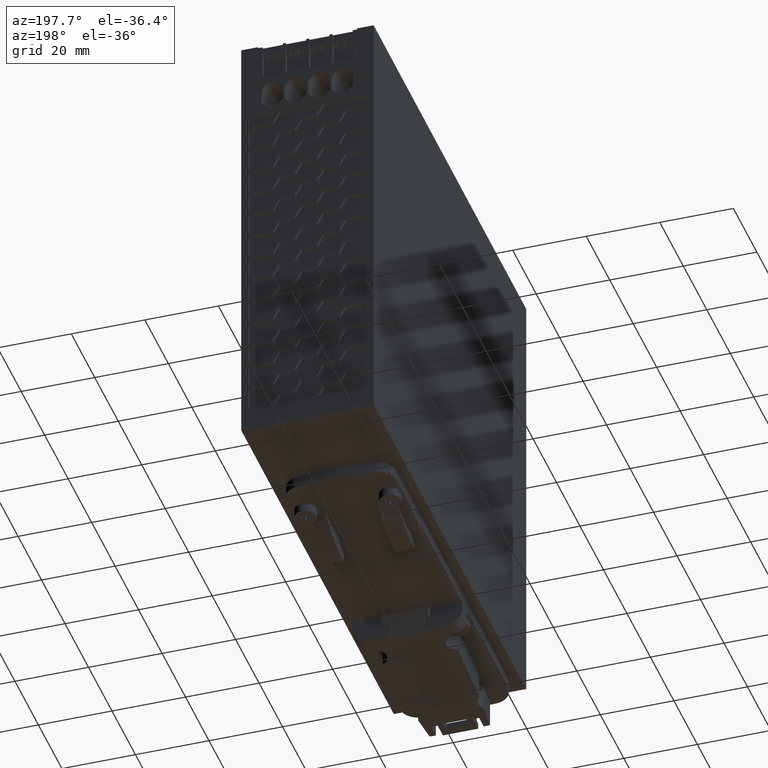
[diagram: clean part render]
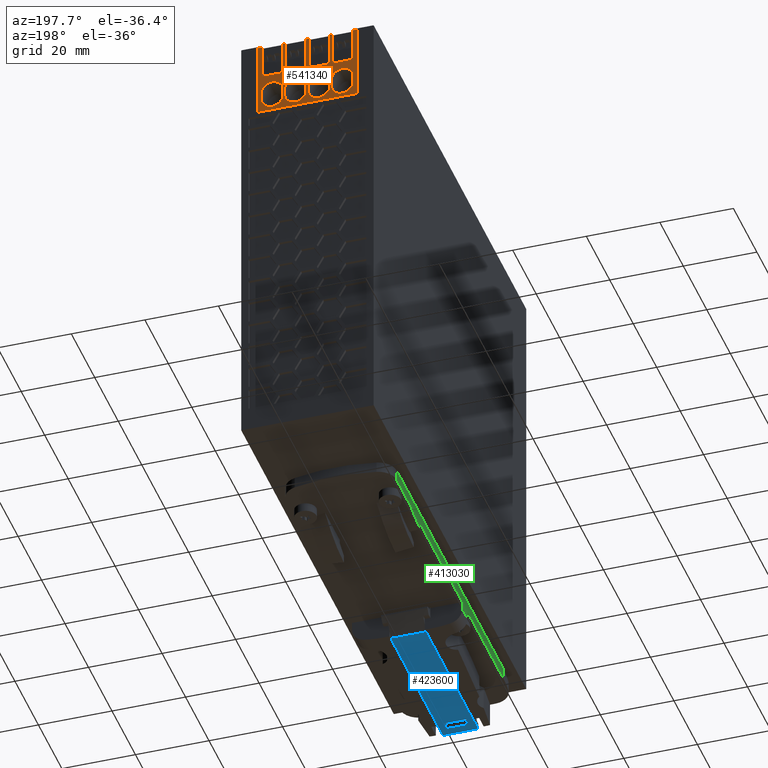
[diagram: same view with three faces highlighted in distinct colors, each labeled with its STEP entity id]
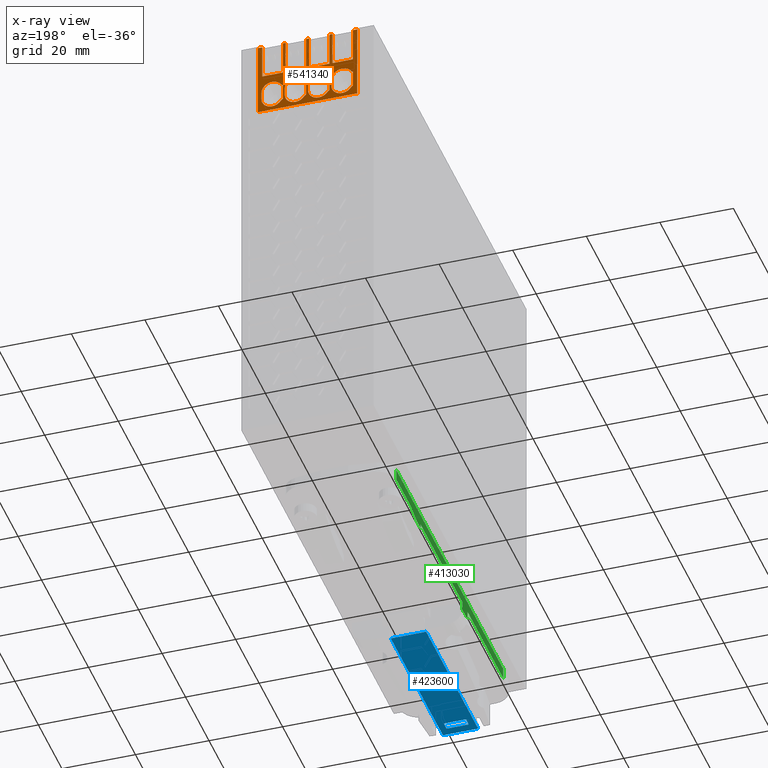
[diagram: x-ray of the same camera — body ghosted, the three highlighted faces saturated]
A machine part, auxiliary view with three faces highlighted in distinct colors.
The next image is the same camera in x-ray (body ghosted, the three faces saturated) — at least one of them is partly hidden behind the body in this view.
Their STEP definitions:

[orange] entity #541340 — the highlighted planar face has unit normal (0, 1, 0).
#400070=CARTESIAN_POINT('',(31.5,129.900000002161,131.60000000419));
#400080=VERTEX_POINT('',#400070);
#400110=CARTESIAN_POINT('',(31.5,129.900000002161,131.2));
#400120=DIRECTION('',(0.,-6.12775601141841E-250,1.));
#400130=VECTOR('',#400120,1.);
#400140=LINE('',#400110,#400130);
#400150=CARTESIAN_POINT('',(31.5,129.900000002161,110.999999999047));
#400160=VERTEX_POINT('',#400150);
#400170=EDGE_CURVE('',#400160,#400080,#400140,.T.);
#400670=CARTESIAN_POINT('',(4.5,129.900000002161,110.999999999047));
#400680=VERTEX_POINT('',#400670);
#400730=CARTESIAN_POINT('',(4.5,129.900000002161,131.2));
#400740=DIRECTION('',(-0.,6.12775601141841E-250,-1.));
#400750=VECTOR('',#400740,1.);
#400760=LINE('',#400730,#400750);
#400770=CARTESIAN_POINT('',(4.5,129.900000002161,131.60000000419));
#400780=VERTEX_POINT('',#400770);
#400790=EDGE_CURVE('',#400780,#400680,#400760,.T.);
#526770=CARTESIAN_POINT('',(38.9583760060492,129.900000002161,
122.249999999047));
#526780=DIRECTION('',(-1.,1.66533453693773E-16,7.31667572330088E-115));
#526790=VECTOR('',#526780,1.);
#526800=LINE('',#526770,#526790);
#526810=CARTESIAN_POINT('',(17.5986736042292,129.900000002161,
122.249999999047));
#526820=VERTEX_POINT('',#526810);
#526830=CARTESIAN_POINT('',(12.0486736042292,129.900000002161,
122.249999999047));
#526840=VERTEX_POINT('',#526830);
#526850=EDGE_CURVE('',#526820,#526840,#526800,.T.);
#536960=CARTESIAN_POINT('',(17.5986736042292,129.900000002161,
158.711171773307));
#536970=DIRECTION('',(-3.6795946252855E-234,0.,1.));
#536980=VECTOR('',#536970,1.);
#536990=LINE('',#536960,#536980);
#537000=CARTESIAN_POINT('',(17.5986736042292,129.900000002161,
131.60000000419));
#537010=VERTEX_POINT('',#537000);
#537020=EDGE_CURVE('',#526820,#537010,#536990,.T.);
#537690=CARTESIAN_POINT('',(12.0486736042292,129.900000002161,
131.60000000419));
#537700=VERTEX_POINT('',#537690);
#537730=CARTESIAN_POINT('',(12.0486736042292,129.900000002161,
158.711171773307));
#537740=DIRECTION('',(-3.6795946252855E-234,0.,1.));
#537750=VECTOR('',#537740,1.);
#537760=LINE('',#537730,#537750);
#537770=EDGE_CURVE('',#526840,#537700,#537760,.T.);
#537920=CARTESIAN_POINT('',(31.4361786442295,129.900000002161,
132.115005044318));
#537930=DIRECTION('',(1.66533453693773E-16,1.,6.12775601141841E-250));
#537940=DIRECTION('',(3.6795946252855E-234,-0.,-1.));
#537950=AXIS2_PLACEMENT_3D('',#537920,#537930,#537940);
#537960=PLANE('',#537950);
#537970=CARTESIAN_POINT('',(21.2986736048012,129.900000002161,
114.950804001168));
#537980=DIRECTION('',(1.66533453693773E-16,1.,-1.21847127775868E-130));
#537990=DIRECTION('',(3.6795946252855E-234,-0.,-1.));
#538000=AXIS2_PLACEMENT_3D('',#537970,#537980,#537990);
#538010=CIRCLE('',#538000,2.90000000000001);
#538020=CARTESIAN_POINT('',(24.1986736047943,129.900000002161,
114.950804000374));
#538030=VERTEX_POINT('',#538020);
#538040=CARTESIAN_POINT('',(18.881984673712,129.900000002161,
113.347802250793));
#538050=VERTEX_POINT('',#538040);
#538060=EDGE_CURVE('',#538030,#538050,#538010,.T.);
#538070=ORIENTED_EDGE('',*,*,#538060,.F.);
#538080=CARTESIAN_POINT('',(17.9653095619938,129.900000002161,
112.739767104146));
#538090=DIRECTION('',(1.66533453693773E-16,1.,-1.21847127775868E-130));
#538100=DIRECTION('',(3.6795946252855E-234,-0.,-1.));
#538110=AXIS2_PLACEMENT_3D('',#538080,#538090,#538100);
#538120=CIRCLE('',#538110,1.10000000000069);
#538130=CARTESIAN_POINT('',(18.3986736049339,129.900000002161,
113.750804000747));
#538140=VERTEX_POINT('',#538130);
#538150=EDGE_CURVE('',#538140,#538050,#538120,.T.);
#538160=ORIENTED_EDGE('',*,*,#538150,.T.);
#538170=CARTESIAN_POINT('',(18.3986736049339,129.900000002161,
158.711171773307));
#538180=DIRECTION('',(3.6795946252855E-234,-0.,-1.));
#538190=VECTOR('',#538180,1.);
#538200=LINE('',#538170,#538190);
#538210=CARTESIAN_POINT('',(18.3986736049339,129.900000002161,
118.200804001161));
#538220=VERTEX_POINT('',#538210);
#538230=EDGE_CURVE('',#538220,#538140,#538200,.T.);
#538240=ORIENTED_EDGE('',*,*,#538230,.T.);
#538250=CARTESIAN_POINT('',(17.9653095619839,129.900000002161,
119.211840897757));
#538260=DIRECTION('',(1.66533453693773E-16,1.,-1.21847127775868E-130));
#538270=DIRECTION('',(3.6795946252855E-234,-0.,-1.));
#538280=AXIS2_PLACEMENT_3D('',#538250,#538260,#538270);
#538290=CIRCLE('',#538280,1.10000000000048);
#538300=CARTESIAN_POINT('',(18.8819846738836,129.900000002161,
118.603805751115));
#538310=VERTEX_POINT('',#538300);
#538320=EDGE_CURVE('',#538310,#538220,#538290,.T.);
#538330=ORIENTED_EDGE('',*,*,#538320,.T.);
#538340=CARTESIAN_POINT('',(21.2986736048242,129.900000002161,
117.000804001167));
#538350=DIRECTION('',(1.66533453693773E-16,1.,-1.21847127775868E-130));
#538360=DIRECTION('',(3.6795946252855E-234,-0.,-1.));
#538370=AXIS2_PLACEMENT_3D('',#538340,#538350,#538360);
#538380=CIRCLE('',#538370,2.89999999987401);
#538390=CARTESIAN_POINT('',(24.1986736046982,129.900000002161,
117.000804001166));
#538400=VERTEX_POINT('',#538390);
#538410=EDGE_CURVE('',#538310,#538400,#538380,.T.);
#538420=ORIENTED_EDGE('',*,*,#538410,.F.);
#538430=CARTESIAN_POINT('',(24.1986736047943,129.900000002161,
158.711171773307));
#538440=DIRECTION('',(3.6795946252855E-234,-0.,-1.));
#538450=VECTOR('',#538440,1.);
#538460=LINE('',#538430,#538450);
#538470=EDGE_CURVE('',#538400,#538030,#538460,.T.);
#538480=ORIENTED_EDGE('',*,*,#538470,.F.);
#538490=EDGE_LOOP('',(#538480,#538420,#538330,#538240,#538160,#538070));
#538500=FACE_BOUND('',#538490,.T.);
#538510=CARTESIAN_POINT('',(24.3153095619844,129.900000002161,
119.211840897757));
#538520=DIRECTION('',(1.66533453693773E-16,1.,-1.21847127775868E-130));
#538530=DIRECTION('',(3.6795946252855E-234,-0.,-1.));
#538540=AXIS2_PLACEMENT_3D('',#538510,#538520,#538530);
#538550=CIRCLE('',#538540,1.09999999999979);
#538560=CARTESIAN_POINT('',(25.2319846737598,129.900000002161,
118.603805751197));
#538570=VERTEX_POINT('',#538560);
#538580=CARTESIAN_POINT('',(24.7486736049339,129.900000002161,
118.200804001161));
#538590=VERTEX_POINT('',#538580);
#538600=EDGE_CURVE('',#538570,#538590,#538550,.T.);
#538610=ORIENTED_EDGE('',*,*,#538600,.T.);
#538620=CARTESIAN_POINT('',(27.6486736048242,129.900000002161,
117.000804001167));
#538630=DIRECTION('',(1.66533453693773E-16,1.,-1.21847127775868E-130));
#538640=DIRECTION('',(3.6795946252855E-234,-0.,-1.));
#538650=AXIS2_PLACEMENT_3D('',#538620,#538630,#538640);
#538660=CIRCLE('',#538650,2.89999999987399);
#538670=CARTESIAN_POINT('',(30.5486736046981,129.900000002161,
117.000804001112));
#538680=VERTEX_POINT('',#538670);
#538690=EDGE_CURVE('',#538570,#538680,#538660,.T.);
#538700=ORIENTED_EDGE('',*,*,#538690,.F.);
#538710=CARTESIAN_POINT('',(30.5486736047943,129.900000002161,
158.711171773307));
#538720=DIRECTION('',(3.6795946252855E-234,-0.,-1.));
#538730=VECTOR('',#538720,1.);
#538740=LINE('',#538710,#538730);
#538750=CARTESIAN_POINT('',(30.5486736048012,129.900000002161,
114.950804000374));
#538760=VERTEX_POINT('',#538750);
#538770=EDGE_CURVE('',#538680,#538760,#538740,.T.);
#538780=ORIENTED_EDGE('',*,*,#538770,.F.);
#538790=CARTESIAN_POINT('',(27.6486736048012,129.900000002161,
114.950804001168));
#538800=DIRECTION('',(1.66533453693773E-16,1.,-1.21847127775868E-130));
#538810=DIRECTION('',(3.6795946252855E-234,-0.,-1.));
#538820=AXIS2_PLACEMENT_3D('',#538790,#538800,#538810);
#538830=CIRCLE('',#538820,2.90000000000006);
#538840=CARTESIAN_POINT('',(25.231984673713,129.900000002161,
113.347802250791));
#538850=VERTEX_POINT('',#538840);
#538860=EDGE_CURVE('',#538760,#538850,#538830,.T.);
#538870=ORIENTED_EDGE('',*,*,#538860,.F.);
#538880=CARTESIAN_POINT('',(24.3153095619948,129.900000002161,
112.739767104147));
#538890=DIRECTION('',(1.66533453693773E-16,1.,-1.21847127775868E-130));
#538900=DIRECTION('',(3.6795946252855E-234,-0.,-1.));
#538910=AXIS2_PLACEMENT_3D('',#538880,#538890,#538900);
#538920=CIRCLE('',#538910,1.09999999999916);
#538930=CARTESIAN_POINT('',(24.748673604934,129.900000002161,
113.750804000747));
#538940=VERTEX_POINT('',#538930);
#538950=EDGE_CURVE('',#538940,#538850,#538920,.T.);
#538960=ORIENTED_EDGE('',*,*,#538950,.T.);
#538970=CARTESIAN_POINT('',(24.7486736049339,129.900000002161,
158.711171773307));
#538980=DIRECTION('',(3.6795946252855E-234,-0.,-1.));
#538990=VECTOR('',#538980,1.);
#539000=LINE('',#538970,#538990);
#539010=EDGE_CURVE('',#538590,#538940,#539000,.T.);
#539020=ORIENTED_EDGE('',*,*,#539010,.T.);
#539030=EDGE_LOOP('',(#539020,#538960,#538870,#538780,#538700,#538610));
#539040=FACE_BOUND('',#539030,.T.);
#539050=CARTESIAN_POINT('',(8.59867360479617,129.900000002161,
114.950804001168));
#539060=DIRECTION('',(1.66533453693773E-16,1.,-1.21847127775868E-130));
#539070=DIRECTION('',(3.6795946252855E-234,-0.,-1.));
#539080=AXIS2_PLACEMENT_3D('',#539050,#539060,#539070);
#539090=CIRCLE('',#539080,2.90000000000001);
#539100=CARTESIAN_POINT('',(11.4986736047893,129.900000002161,
114.950804000969));
#539110=VERTEX_POINT('',#539100);
#539120=CARTESIAN_POINT('',(6.18198467370703,129.900000002161,
113.347802250793));
#539130=VERTEX_POINT('',#539120);
#539140=EDGE_CURVE('',#539110,#539130,#539090,.T.);
#539150=ORIENTED_EDGE('',*,*,#539140,.F.);
#539160=CARTESIAN_POINT('',(5.26530956198879,129.900000002161,
112.739767104146));
#539170=DIRECTION('',(1.66533453693773E-16,1.,-1.21847127775868E-130));
#539180=DIRECTION('',(3.6795946252855E-234,-0.,-1.));
#539190=AXIS2_PLACEMENT_3D('',#539160,#539170,#539180);
#539200=CIRCLE('',#539190,1.10000000000069);
#539210=CARTESIAN_POINT('',(5.69867360492893,129.900000002161,
113.750804000747));
#539220=VERTEX_POINT('',#539210);
#539230=EDGE_CURVE('',#539220,#539130,#539200,.T.);
#539240=ORIENTED_EDGE('',*,*,#539230,.T.);
#539250=CARTESIAN_POINT('',(5.69867360492893,129.900000002161,
158.711171773307));
#539260=DIRECTION('',(3.6795946252855E-234,-0.,-1.));
#539270=VECTOR('',#539260,1.);
#539280=LINE('',#539250,#539270);
#539290=CARTESIAN_POINT('',(5.69867360492893,129.900000002161,
118.200804001161));
#539300=VERTEX_POINT('',#539290);
#539310=EDGE_CURVE('',#539300,#539220,#539280,.T.);
#539320=ORIENTED_EDGE('',*,*,#539310,.T.);
#539330=CARTESIAN_POINT('',(5.2653095619789,129.900000002161,
119.211840897757));
#539340=DIRECTION('',(1.66533453693773E-16,1.,-1.21847127775868E-130));
#539350=DIRECTION('',(3.6795946252855E-234,-0.,-1.));
#539360=AXIS2_PLACEMENT_3D('',#539330,#539340,#539350);
#539370=CIRCLE('',#539360,1.10000000000048);
#539380=CARTESIAN_POINT('',(6.18198467387856,129.900000002161,
118.603805751115));
#539390=VERTEX_POINT('',#539380);
#539400=EDGE_CURVE('',#539390,#539300,#539370,.T.);
#539410=ORIENTED_EDGE('',*,*,#539400,.T.);
#539420=CARTESIAN_POINT('',(8.59867360481917,129.900000002161,
117.000804001167));
#539430=DIRECTION('',(1.66533453693773E-16,1.,-1.21847127775868E-130));
#539440=DIRECTION('',(3.6795946252855E-234,-0.,-1.));
#539450=AXIS2_PLACEMENT_3D('',#539420,#539430,#539440);
#539460=CIRCLE('',#539450,2.89999999987401);
#539470=CARTESIAN_POINT('',(11.4986736047893,129.900000002161,
117.000804001112));
#539480=VERTEX_POINT('',#539470);
#539490=EDGE_CURVE('',#539390,#539480,#539460,.T.);
#539500=ORIENTED_EDGE('',*,*,#539490,.F.);
#539510=CARTESIAN_POINT('',(11.4986736047893,129.900000002161,
158.711171773307));
#539520=DIRECTION('',(3.6795946252855E-234,-0.,-1.));
#539530=VECTOR('',#539520,1.);
#539540=LINE('',#539510,#539530);
#539550=EDGE_CURVE('',#539480,#539110,#539540,.T.);
#539560=ORIENTED_EDGE('',*,*,#539550,.F.);
#539570=EDGE_LOOP('',(#539560,#539500,#539410,#539320,#539240,#539150));
#539580=FACE_BOUND('',#539570,.T.);
#539590=CARTESIAN_POINT('',(11.6153095619794,129.900000002161,
119.211840897757));
#539600=DIRECTION('',(1.66533453693773E-16,1.,-1.21847127775868E-130));
#539610=DIRECTION('',(3.6795946252855E-234,-0.,-1.));
#539620=AXIS2_PLACEMENT_3D('',#539590,#539600,#539610);
#539630=CIRCLE('',#539620,1.09999999999979);
#539640=CARTESIAN_POINT('',(12.5319846738786,129.900000002161,
118.603805751115));
#539650=VERTEX_POINT('',#539640);
#539660=CARTESIAN_POINT('',(12.0486736049289,129.900000002161,
118.200804001161));
#539670=VERTEX_POINT('',#539660);
#539680=EDGE_CURVE('',#539650,#539670,#539630,.T.);
#539690=ORIENTED_EDGE('',*,*,#539680,.T.);
#539700=CARTESIAN_POINT('',(14.9486736048192,129.900000002161,
117.000804001167));
#539710=DIRECTION('',(1.66533453693773E-16,1.,-1.21847127775868E-130));
#539720=DIRECTION('',(3.6795946252855E-234,-0.,-1.));
#539730=AXIS2_PLACEMENT_3D('',#539700,#539710,#539720);
#539740=CIRCLE('',#539730,2.89999999987399);
#539750=CARTESIAN_POINT('',(17.8486736046932,129.900000002161,
117.000804001112));
#539760=VERTEX_POINT('',#539750);
#539770=EDGE_CURVE('',#539650,#539760,#539740,.T.);
#539780=ORIENTED_EDGE('',*,*,#539770,.F.);
#539790=CARTESIAN_POINT('',(17.8486736047893,129.900000002161,
158.711171773307));
#539800=DIRECTION('',(3.6795946252855E-234,-0.,-1.));
#539810=VECTOR('',#539800,1.);
#539820=LINE('',#539790,#539810);
#539830=CARTESIAN_POINT('',(17.8486736047962,129.900000002161,
114.950804000374));
#539840=VERTEX_POINT('',#539830);
#539850=EDGE_CURVE('',#539760,#539840,#539820,.T.);
#539860=ORIENTED_EDGE('',*,*,#539850,.F.);
#539870=CARTESIAN_POINT('',(14.9486736047962,129.900000002161,
114.950804001168));
#539880=DIRECTION('',(1.66533453693773E-16,1.,-1.21847127775868E-130));
#539890=DIRECTION('',(3.6795946252855E-234,-0.,-1.));
#539900=AXIS2_PLACEMENT_3D('',#539870,#539880,#539890);
#539910=CIRCLE('',#539900,2.90000000000006);
#539920=CARTESIAN_POINT('',(12.531984673707,129.900000002161,
113.347802250793));
#539930=VERTEX_POINT('',#539920);
#539940=EDGE_CURVE('',#539840,#539930,#539910,.T.);
#539950=ORIENTED_EDGE('',*,*,#539940,.F.);
#539960=CARTESIAN_POINT('',(11.6153095619898,129.900000002161,
112.739767104147));
#539970=DIRECTION('',(1.66533453693773E-16,1.,-1.21847127775868E-130));
#539980=DIRECTION('',(3.6795946252855E-234,-0.,-1.));
#539990=AXIS2_PLACEMENT_3D('',#539960,#539970,#539980);
#540000=CIRCLE('',#539990,1.09999999999916);
#540010=CARTESIAN_POINT('',(12.0486736049289,129.900000002161,
113.750804000747));
#540020=VERTEX_POINT('',#540010);
#540030=EDGE_CURVE('',#540020,#539930,#540000,.T.);
#540040=ORIENTED_EDGE('',*,*,#540030,.T.);
#540050=CARTESIAN_POINT('',(12.0486736049289,129.900000002161,
158.711171773307));
#540060=DIRECTION('',(3.6795946252855E-234,-0.,-1.));
#540070=VECTOR('',#540060,1.);
#540080=LINE('',#540050,#540070);
#540090=EDGE_CURVE('',#539670,#540020,#540080,.T.);
#540100=ORIENTED_EDGE('',*,*,#540090,.T.);
#540110=EDGE_LOOP('',(#540100,#540040,#539950,#539860,#539780,#539690));
#540120=FACE_BOUND('',#540110,.T.);
#540130=ORIENTED_EDGE('',*,*,#400170,.F.);
#540140=CARTESIAN_POINT('',(0.,129.900000002161,131.60000000419));
#540150=DIRECTION('',(1.,-1.66533453693773E-16,0.));
#540160=VECTOR('',#540150,1.);
#540170=LINE('',#540140,#540160);
#540180=CARTESIAN_POINT('',(30.2986736042342,129.900000002161,
131.60000000419));
#540190=VERTEX_POINT('',#540180);
#540200=EDGE_CURVE('',#540190,#400080,#540170,.T.);
#540210=ORIENTED_EDGE('',*,*,#540200,.T.);
#540220=CARTESIAN_POINT('',(30.2986736042342,129.900000002161,
158.711171773307));
#540230=DIRECTION('',(-3.6795946252855E-234,0.,1.));
#540240=VECTOR('',#540230,1.);
#540250=LINE('',#540220,#540240);
#540260=CARTESIAN_POINT('',(30.2986736042342,129.900000002161,
122.249999999047));
#540270=VERTEX_POINT('',#540260);
#540280=EDGE_CURVE('',#540270,#540190,#540250,.T.);
#540290=ORIENTED_EDGE('',*,*,#540280,.T.);
#540300=CARTESIAN_POINT('',(51.6583760060542,129.900000002161,
122.249999999047));
#540310=DIRECTION('',(-1.,1.66533453693773E-16,7.31667572330088E-115));
#540320=VECTOR('',#540310,1.);
#540330=LINE('',#540300,#540320);
#540340=CARTESIAN_POINT('',(24.7486736042342,129.900000002161,
122.249999999047));
#540350=VERTEX_POINT('',#540340);
#540360=EDGE_CURVE('',#540270,#540350,#540330,.T.);
#540370=ORIENTED_EDGE('',*,*,#540360,.F.);
#540380=CARTESIAN_POINT('',(24.7486736042342,129.900000002161,
158.711171773307));
#540390=DIRECTION('',(-3.6795946252855E-234,0.,1.));
#540400=VECTOR('',#540390,1.);
#540410=LINE('',#540380,#540400);
#540420=CARTESIAN_POINT('',(24.7486736042342,129.900000002161,
131.60000000419));
#540430=VERTEX_POINT('',#540420);
#540440=EDGE_CURVE('',#540350,#540430,#540410,.T.);
#540450=ORIENTED_EDGE('',*,*,#540440,.F.);
#540460=CARTESIAN_POINT('',(51.6583760060542,129.900000002161,
131.60000000419));
#540470=DIRECTION('',(1.,-1.66533453693773E-16,-7.31667572330088E-115));
#540480=VECTOR('',#540470,1.);
#540490=LINE('',#540460,#540480);
#540500=CARTESIAN_POINT('',(23.9486736042342,129.900000002161,
131.60000000419));
#540510=VERTEX_POINT('',#540500);
#540520=EDGE_CURVE('',#540510,#540430,#540490,.T.);
#540530=ORIENTED_EDGE('',*,*,#540520,.T.);
#540540=CARTESIAN_POINT('',(23.9486736042342,129.900000002161,
158.711171773307));
#540550=DIRECTION('',(-3.6795946252855E-234,0.,1.));
#540560=VECTOR('',#540550,1.);
#540570=LINE('',#540540,#540560);
#540580=CARTESIAN_POINT('',(23.9486736042342,129.900000002161,
122.249999999047));
#540590=VERTEX_POINT('',#540580);
#540600=EDGE_CURVE('',#540590,#540510,#540570,.T.);
#540610=ORIENTED_EDGE('',*,*,#540600,.T.);
#540620=CARTESIAN_POINT('',(51.6583760060542,129.900000002161,
122.249999999047));
#540630=DIRECTION('',(-1.,1.66533453693773E-16,7.31667572330088E-115));
#540640=VECTOR('',#540630,1.);
#540650=LINE('',#540620,#540640);
#540660=CARTESIAN_POINT('',(18.3986736041942,129.900000002161,
122.249999999047));
#540670=VERTEX_POINT('',#540660);
#540680=EDGE_CURVE('',#540590,#540670,#540650,.T.);
#540690=ORIENTED_EDGE('',*,*,#540680,.F.);
#540700=CARTESIAN_POINT('',(18.3986736041942,129.900000002161,
158.711171773307));
#540710=DIRECTION('',(-3.6795946252855E-234,0.,1.));
#540720=VECTOR('',#540710,1.);
#540730=LINE('',#540700,#540720);
#540740=CARTESIAN_POINT('',(18.3986736041942,129.900000002161,
131.60000000419));
#540750=VERTEX_POINT('',#540740);
#540760=EDGE_CURVE('',#540670,#540750,#540730,.T.);
#540770=ORIENTED_EDGE('',*,*,#540760,.F.);
#540780=CARTESIAN_POINT('',(51.6583760060542,129.900000002161,
131.60000000419));
#540790=DIRECTION('',(-1.,1.66533453693773E-16,7.31667572330088E-115));
#540800=VECTOR('',#540790,1.);
#540810=LINE('',#540780,#540800);
#540820=EDGE_CURVE('',#540750,#537010,#540810,.T.);
#540830=ORIENTED_EDGE('',*,*,#540820,.F.);
#540840=ORIENTED_EDGE('',*,*,#537020,.T.);
#540850=ORIENTED_EDGE('',*,*,#526850,.F.);
#540860=ORIENTED_EDGE('',*,*,#537770,.F.);
#540870=CARTESIAN_POINT('',(38.9583760060492,129.900000002161,
131.60000000419));
#540880=DIRECTION('',(1.,-1.66533453693773E-16,-7.31667572330088E-115));
#540890=VECTOR('',#540880,1.);
#540900=LINE('',#540870,#540890);
#540910=CARTESIAN_POINT('',(11.2486736042292,129.900000002161,
131.60000000419));
#540920=VERTEX_POINT('',#540910);
#540930=EDGE_CURVE('',#540920,#537700,#540900,.T.);
#540940=ORIENTED_EDGE('',*,*,#540930,.T.);
#540950=CARTESIAN_POINT('',(11.2486736042292,129.900000002161,
158.711171773307));
#540960=DIRECTION('',(-3.6795946252855E-234,0.,1.));
#540970=VECTOR('',#540960,1.);
#540980=LINE('',#540950,#540970);
#540990=CARTESIAN_POINT('',(11.2486736042292,129.900000002161,
122.249999999047));
#541000=VERTEX_POINT('',#540990);
#541010=EDGE_CURVE('',#541000,#540920,#540980,.T.);
#541020=ORIENTED_EDGE('',*,*,#541010,.T.);
#541030=CARTESIAN_POINT('',(38.9583760060492,129.900000002161,
122.249999999047));
#541040=DIRECTION('',(-1.,1.66533453693773E-16,7.31667572330088E-115));
#541050=VECTOR('',#541040,1.);
#541060=LINE('',#541030,#541050);
#541070=CARTESIAN_POINT('',(5.69867360418923,129.900000002161,
122.249999999047));
#541080=VERTEX_POINT('',#541070);
#541090=EDGE_CURVE('',#541000,#541080,#541060,.T.);
#541100=ORIENTED_EDGE('',*,*,#541090,.F.);
#541110=CARTESIAN_POINT('',(5.69867360418923,129.900000002161,
158.711171773307));
#541120=DIRECTION('',(-3.6795946252855E-234,0.,1.));
#541130=VECTOR('',#541120,1.);
#541140=LINE('',#541110,#541130);
#541150=CARTESIAN_POINT('',(5.69867360418923,129.900000002161,
131.60000000419));
#541160=VERTEX_POINT('',#541150);
#541170=EDGE_CURVE('',#541080,#541160,#541140,.T.);
#541180=ORIENTED_EDGE('',*,*,#541170,.F.);
#541190=CARTESIAN_POINT('',(0.,129.900000002161,131.60000000419));
#541200=DIRECTION('',(-1.,1.66533453693773E-16,0.));
#541210=VECTOR('',#541200,1.);
#541220=LINE('',#541190,#541210);
#541230=EDGE_CURVE('',#541160,#400780,#541220,.T.);
#541240=ORIENTED_EDGE('',*,*,#541230,.F.);
#541250=ORIENTED_EDGE('',*,*,#400790,.F.);
#541260=CARTESIAN_POINT('',(0.,129.900000002161,110.999999999047));
#541270=DIRECTION('',(1.,-1.66533453693773E-16,0.));
#541280=VECTOR('',#541270,1.);
#541290=LINE('',#541260,#541280);
#541300=EDGE_CURVE('',#400680,#400160,#541290,.T.);
#541310=ORIENTED_EDGE('',*,*,#541300,.F.);
#541320=EDGE_LOOP('',(#541310,#541250,#541240,#541180,#541100,#541020,
#540940,#540860,#540850,#540840,#540830,#540770,#540690,#540610,#540530,
#540450,#540370,#540290,#540210,#540130));
#541330=FACE_OUTER_BOUND('',#541320,.T.);
#541340=ADVANCED_FACE('',(#538500,#539040,#539580,#540120,#541330),
#537960,.T.);

[blue] entity #423600 — the highlighted planar face has unit normal (0, 0, -1).
#409260=CARTESIAN_POINT('',(13.2012850025241,43.9486551811066,
0.0999999999997385));
#409270=VERTEX_POINT('',#409260);
#409300=CARTESIAN_POINT('',(0.00178708709996158,43.9484737299816,
0.0999999999997385));
#409310=DIRECTION('',(0.999999999905512,1.37468202354691E-5,
5.47171506847304E-60));
#409320=VECTOR('',#409310,1.);
#409330=LINE('',#409300,#409320);
#409340=CARTESIAN_POINT('',(22.801285001617,43.9487871505809,
0.0999999999997385));
#409350=VERTEX_POINT('',#409340);
#409360=EDGE_CURVE('',#409270,#409350,#409330,.T.);
#422070=CARTESIAN_POINT('',(22.8001130685189,129.2,0.0999999999997385));
#422080=DIRECTION('',(-1.37468202358296E-5,0.999999999905512,
-3.26265223505973E-55));
#422090=VECTOR('',#422080,1.);
#422100=LINE('',#422070,#422090);
#422110=CARTESIAN_POINT('',(22.8018328124034,4.09878715434665,
0.0999999999997385));
#422120=VERTEX_POINT('',#422110);
#422130=EDGE_CURVE('',#422120,#409350,#422100,.T.);
#422740=CARTESIAN_POINT('',(13.2018328133105,4.09865518487238,
0.0999999999997385));
#422750=VERTEX_POINT('',#422740);
#422780=CARTESIAN_POINT('',(13.2001130676118,129.2,0.0999999999997385));
#422790=DIRECTION('',(1.37468202359536E-5,-0.999999999905512,
3.26265223505973E-55));
#422800=VECTOR('',#422790,1.);
#422810=LINE('',#422780,#422800);
#422820=EDGE_CURVE('',#409270,#422750,#422810,.T.);
#422940=CARTESIAN_POINT('',(23.0419143993832,-1.56135189382991,
0.0999999999997385));
#422950=DIRECTION('',(9.95682444457778E-60,-3.26265223399926E-55,-1.));
#422960=DIRECTION('',(-1.,1.38913403349705E-19,-9.95682444457783E-60));
#422970=AXIS2_PLACEMENT_3D('',#422940,#422950,#422960);
#422980=PLANE('',#422970);
#422990=CARTESIAN_POINT('',(21.0001130683481,129.2,0.0999999999997385));
#423000=DIRECTION('',(-1.37468202418831E-5,0.999999999905513,
-3.26265223505973E-55));
#423010=VECTOR('',#423000,1.);
#423020=LINE('',#422990,#423010);
#423030=CARTESIAN_POINT('',(21.0018609935549,2.04876241026375,
0.0999999999997385));
#423040=VERTEX_POINT('',#423030);
#423050=CARTESIAN_POINT('',(21.0018293758684,4.34876241004642,
0.0999999999997385));
#423060=VERTEX_POINT('',#423050);
#423070=EDGE_CURVE('',#423040,#423060,#423020,.T.);
#423080=ORIENTED_EDGE('',*,*,#423070,.T.);
#423090=CARTESIAN_POINT('',(0.00178708709996157,2.04847372602273,
0.0999999999997385));
#423100=DIRECTION('',(0.999999999905512,1.3746820238858E-5,
5.47171506736735E-60));
#423110=VECTOR('',#423100,1.);
#423120=LINE('',#423090,#423110);
#423130=CARTESIAN_POINT('',(15.0018609941219,2.04867992934234,
0.0999999999997385));
#423140=VERTEX_POINT('',#423130);
#423150=EDGE_CURVE('',#423140,#423040,#423120,.T.);
#423160=ORIENTED_EDGE('',*,*,#423150,.T.);
#423170=CARTESIAN_POINT('',(15.0001130677812,129.2,0.0999999999997385));
#423180=DIRECTION('',(1.37468202418831E-5,-0.999999999905513,
3.26265223505973E-55));
#423190=VECTOR('',#423180,1.);
#423200=LINE('',#423170,#423190);
#423210=CARTESIAN_POINT('',(15.0018293764353,4.34867992912501,
0.0999999999997385));
#423220=VERTEX_POINT('',#423210);
#423230=EDGE_CURVE('',#423220,#423140,#423200,.T.);
#423240=ORIENTED_EDGE('',*,*,#423230,.T.);
#423250=CARTESIAN_POINT('',(0.00178708709996157,4.34847372624006,
0.0999999999997385));
#423260=DIRECTION('',(-0.999999999905512,-1.37468202387645E-5,
-5.47171506739787E-60));
#423270=VECTOR('',#423260,1.);
#423280=LINE('',#423250,#423270);
#423290=EDGE_CURVE('',#423060,#423220,#423280,.T.);
#423300=ORIENTED_EDGE('',*,*,#423290,.T.);
#423310=EDGE_LOOP('',(#423300,#423240,#423160,#423080));
#423320=FACE_BOUND('',#423310,.T.);
#423330=ORIENTED_EDGE('',*,*,#422820,.F.);
#423340=CARTESIAN_POINT('',(13.2001130676118,129.2,0.0999999999997385));
#423350=DIRECTION('',(1.37468202360801E-5,-0.999999999905513,
3.26265223505973E-55));
#423360=VECTOR('',#423350,1.);
#423370=LINE('',#423340,#423360);
#423380=CARTESIAN_POINT('',(13.2018953613425,-0.451344814697876,
0.0999999999997385));
#423390=VERTEX_POINT('',#423380);
#423400=EDGE_CURVE('',#422750,#423390,#423370,.T.);
#423410=ORIENTED_EDGE('',*,*,#423400,.F.);
#423420=CARTESIAN_POINT('',(0.00178708709996157,-0.451526274213563,
0.0999999999997385));
#423430=DIRECTION('',(-0.999999999905513,-1.37468202420775E-5,
-5.47171506631695E-60));
#423440=VECTOR('',#423430,1.);
#423450=LINE('',#423420,#423440);
#423460=CARTESIAN_POINT('',(22.8018953604355,-0.451212845223608,
0.0999999999997385));
#423470=VERTEX_POINT('',#423460);
#423480=EDGE_CURVE('',#423470,#423390,#423450,.T.);
#423490=ORIENTED_EDGE('',*,*,#423480,.T.);
#423500=CARTESIAN_POINT('',(22.8001130685191,129.2,0.0999999999997385));
#423510=DIRECTION('',(1.37468202349647E-5,-0.999999999905512,
3.26265223505973E-55));
#423520=VECTOR('',#423510,1.);
#423530=LINE('',#423500,#423520);
#423540=EDGE_CURVE('',#422120,#423470,#423530,.T.);
#423550=ORIENTED_EDGE('',*,*,#423540,.T.);
#423560=ORIENTED_EDGE('',*,*,#422130,.F.);
#423570=ORIENTED_EDGE('',*,*,#409360,.T.);
#423580=EDGE_LOOP('',(#423570,#423560,#423550,#423490,#423410,#423330));
#423590=FACE_OUTER_BOUND('',#423580,.T.);
#423600=ADVANCED_FACE('',(#423320,#423590),#422980,.T.);

[green] entity #413030 — the highlighted planar face has unit normal (-1, 0, -0).
#216970=CARTESIAN_POINT('',(3.00174895867081,10.1985149667294,
9.59999999999972));
#216980=VERTEX_POINT('',#216970);
#217010=CARTESIAN_POINT('',(3.0009956125073,65.,9.59999999999972));
#217020=DIRECTION('',(1.37468202359206E-5,-0.999999999905512,0.));
#217030=VECTOR('',#217020,1.);
#217040=LINE('',#217010,#217030);
#217050=CARTESIAN_POINT('',(3.00049971882964,101.073336895104,
9.59999999999972));
#217060=VERTEX_POINT('',#217050);
#217070=EDGE_CURVE('',#217060,#216980,#217040,.T.);
#411490=CARTESIAN_POINT('',(3.00126988198557,45.0485149634365,
6.59999999999972));
#411500=VERTEX_POINT('',#411490);
#411530=CARTESIAN_POINT('',(3.00126988198557,45.0485149634365,
9.5999999999909));
#411540=DIRECTION('',(9.95682444457783E-60,-3.26265223399926E-55,-1.));
#411550=VECTOR('',#411540,1.);
#411560=LINE('',#411530,#411550);
#411570=CARTESIAN_POINT('',(3.00126988198557,45.0485149634365,
4.39238394539596));
#411580=VERTEX_POINT('',#411570);
#411590=EDGE_CURVE('',#411500,#411580,#411560,.T.);
#412030=CARTESIAN_POINT('',(3.00046848778166,103.345211223313,
4.26218976403106));
#412040=DIRECTION('',(-0.999999999905512,-1.37468202359206E-5,
-5.47171506832577E-60));
#412050=DIRECTION('',(1.37468202359206E-5,-0.999999999905512,
3.26265223505973E-55));
#412060=AXIS2_PLACEMENT_3D('',#412030,#412040,#412050);
#412070=PLANE('',#412060);
#412080=ORIENTED_EDGE('',*,*,#217070,.F.);
#412090=CARTESIAN_POINT('',(3.00174895867079,10.1985149667294,
9.59999999999221));
#412100=DIRECTION('',(9.95682444457783E-60,-3.26265223399926E-55,-1.));
#412110=VECTOR('',#412100,1.);
#412120=LINE('',#412090,#412110);
#412130=CARTESIAN_POINT('',(3.00174895867079,10.1985149667294,
6.59999999999972));
#412140=VERTEX_POINT('',#412130);
#412150=EDGE_CURVE('',#216980,#412140,#412120,.T.);
#412160=ORIENTED_EDGE('',*,*,#412150,.F.);
#412170=CARTESIAN_POINT('',(3.00011306664807,129.2,6.59999999999972));
#412180=DIRECTION('',(1.37468202359206E-5,-0.999999999905512,
3.26265223505973E-55));
#412190=VECTOR('',#412180,1.);
#412200=LINE('',#412170,#412190);
#412210=CARTESIAN_POINT('',(3.00133174267663,40.5485149638617,
6.59999999999972));
#412220=VERTEX_POINT('',#412210);
#412230=EDGE_CURVE('',#412220,#412140,#412200,.T.);
#412240=ORIENTED_EDGE('',*,*,#412230,.T.);
#412250=CARTESIAN_POINT('',(3.00133174267663,40.5485149638617,
9.5999999999909));
#412260=DIRECTION('',(9.95682444457783E-60,-3.26265223399926E-55,-1.));
#412270=VECTOR('',#412260,1.);
#412280=LINE('',#412250,#412270);
#412290=CARTESIAN_POINT('',(3.00133174267663,40.5485149638617,
4.39238394539596));
#412300=VERTEX_POINT('',#412290);
#412310=EDGE_CURVE('',#412220,#412300,#412280,.T.);
#412320=ORIENTED_EDGE('',*,*,#412310,.F.);
#412330=CARTESIAN_POINT('',(3.00126988198557,45.0485149634365,
4.39238394539596));
#412340=DIRECTION('',(1.37468202357184E-5,-0.999999999905512,
3.26265223505973E-55));
#412350=VECTOR('',#412340,1.);
#412360=LINE('',#412330,#412350);
#412370=EDGE_CURVE('',#411580,#412300,#412360,.T.);
#412380=ORIENTED_EDGE('',*,*,#412370,.T.);
#412390=ORIENTED_EDGE('',*,*,#411590,.T.);
#412400=CARTESIAN_POINT('',(3.00011306664807,129.2,6.59999999999972));
#412410=DIRECTION('',(1.37468202359206E-5,-0.999999999905512,
3.26265223505973E-55));
#412420=VECTOR('',#412410,1.);
#412430=LINE('',#412400,#412420);
#412440=CARTESIAN_POINT('',(3.00078186986719,80.5485149600822,
6.59999999999972));
#412450=VERTEX_POINT('',#412440);
#412460=EDGE_CURVE('',#412450,#411500,#412430,.T.);
#412470=ORIENTED_EDGE('',*,*,#412460,.T.);
#412480=CARTESIAN_POINT('',(3.00078186986719,80.5485149600822,
9.5999999999909));
#412490=DIRECTION('',(9.95682444457783E-60,-3.26265223399926E-55,-1.));
#412500=VECTOR('',#412490,1.);
#412510=LINE('',#412480,#412500);
#412520=CARTESIAN_POINT('',(3.00078186986719,80.5485149600822,
5.25801783356731));
#412530=VERTEX_POINT('',#412520);
#412540=EDGE_CURVE('',#412450,#412530,#412510,.T.);
#412550=ORIENTED_EDGE('',*,*,#412540,.F.);
#412560=CARTESIAN_POINT('',(3.00066966039108,88.7110917725238,
6.59999999999997));
#412570=CARTESIAN_POINT('',(3.00067191530615,88.5470600159256,
6.54499876369657));
#412580=CARTESIAN_POINT('',(3.0006764406356,88.2178690197133,
6.43830316929237));
#412590=CARTESIAN_POINT('',(3.0006832720872,87.7209212542286,
6.28828769133295));
#412600=CARTESIAN_POINT('',(3.00069014443323,87.2209986604969,
6.14837925374651));
#412610=CARTESIAN_POINT('',(3.00069705549598,86.718259653695,
6.01863237996152));
#412620=CARTESIAN_POINT('',(3.00070400208777,86.2129361188101,
5.89910509834277));
#412630=CARTESIAN_POINT('',(3.00071098125702,85.7052427670297,
5.78983233872306));
#412640=CARTESIAN_POINT('',(3.00071798928685,85.19544997748,
5.69084037569422));
#412650=CARTESIAN_POINT('',(3.00072502348886,84.6837533167183,
5.60212156559409));
#412660=CARTESIAN_POINT('',(3.00073208096462,84.1703636288619,
5.52365607728673));
#412670=CARTESIAN_POINT('',(3.00073915862165,83.6555058717813,
5.45540975761291));
#412680=CARTESIAN_POINT('',(3.00074625326043,83.1394127931654,
5.39733233741656));
#412690=CARTESIAN_POINT('',(3.00075336085323,82.6223773858934,
5.34936275573075));
#412700=CARTESIAN_POINT('',(3.00076047868339,82.104597270735,
5.31141202645289));
#412710=CARTESIAN_POINT('',(3.0007676039539,81.5862759145067,
5.28337830859554));
#412720=CARTESIAN_POINT('',(3.00077354666684,81.1539786385992,
5.26818496990637));
#412730=CARTESIAN_POINT('',(3.00077741074517,80.8728897569649,
5.262242532936));
#412740=CARTESIAN_POINT('',(3.00077919433386,80.7431442110619,
5.26025082032817));
#412750=CARTESIAN_POINT('',(3.00077986320438,80.6944878309026,
5.25961678429356));
#412760=CARTESIAN_POINT('',(3.00078030912539,80.6620497100275,
5.25924029206585));
#412770=CARTESIAN_POINT('',(3.00078053208784,80.6458305086171,
5.25906260773087));
#412780=CARTESIAN_POINT('',(3.00078075505093,80.6296112605691,
5.25888922840731));
#412790=CARTESIAN_POINT('',(3.00078120097686,80.5971727817892,
5.25854040729892));
#412800=CARTESIAN_POINT('',(3.00078157258188,80.5701407107755,
5.25825017224444));
#412810=CARTESIAN_POINT('',(3.00078186986589,80.5485150549573,
5.25801783458661));
#412820=B_SPLINE_CURVE_WITH_KNOTS('',3,(#412560,#412570,#412580,#412590,
#412600,#412610,#412620,#412630,#412640,#412650,#412660,#412670,#412680,
#412690,#412700,#412710,#412720,#412730,#412740,#412750,#412760,#412770,
#412780,#412790,#412800,#412810),.UNSPECIFIED.,.F.,.F.,(4,1,1,1,1,1,1,1,
1,1,1,1,1,1,1,1,1,1,1,1,1,1,1,4),(0.,0.062480749670542,0.124964182755219
,0.187457070812452,0.2499492515057,0.312462038298428,0.374975019935378,
0.437486204823265,0.499997350745526,0.562516160360947,0.625034899874547,
0.687549795147428,0.750064974115919,0.812549760322935,0.875033471938204,
0.937516661567943,0.968758235148438,0.976568674542824,0.984379105402741,
0.986331716815955,0.988284328335315,0.990236940055133,0.992189551831794,
1.),.UNSPECIFIED.);
#412830=CARTESIAN_POINT('',(3.00066966039108,88.7110917725239,
6.59999999999974));
#412840=VERTEX_POINT('',#412830);
#412850=EDGE_CURVE('',#412840,#412530,#412820,.T.);
#412860=ORIENTED_EDGE('',*,*,#412850,.T.);
#412870=CARTESIAN_POINT('',(3.00011306664807,129.2,6.59999999999972));
#412880=DIRECTION('',(1.37468202359206E-5,-0.999999999905512,
3.26265223505973E-55));
#412890=VECTOR('',#412880,1.);
#412900=LINE('',#412870,#412890);
#412910=CARTESIAN_POINT('',(3.00049971882965,101.073336895104,
6.59999999999972));
#412920=VERTEX_POINT('',#412910);
#412930=EDGE_CURVE('',#412920,#412840,#412900,.T.);
#412940=ORIENTED_EDGE('',*,*,#412930,.T.);
#412950=CARTESIAN_POINT('',(3.00049971882965,101.073336895104,
9.59999999999221));
#412960=DIRECTION('',(9.95682444457783E-60,-3.26265223399926E-55,-1.));
#412970=VECTOR('',#412960,1.);
#412980=LINE('',#412950,#412970);
#412990=EDGE_CURVE('',#217060,#412920,#412980,.T.);
#413000=ORIENTED_EDGE('',*,*,#412990,.T.);
#413010=EDGE_LOOP('',(#413000,#412940,#412860,#412550,#412470,#412390,
#412380,#412320,#412240,#412160,#412080));
#413020=FACE_OUTER_BOUND('',#413010,.T.);
#413030=ADVANCED_FACE('',(#413020),#412070,.T.);